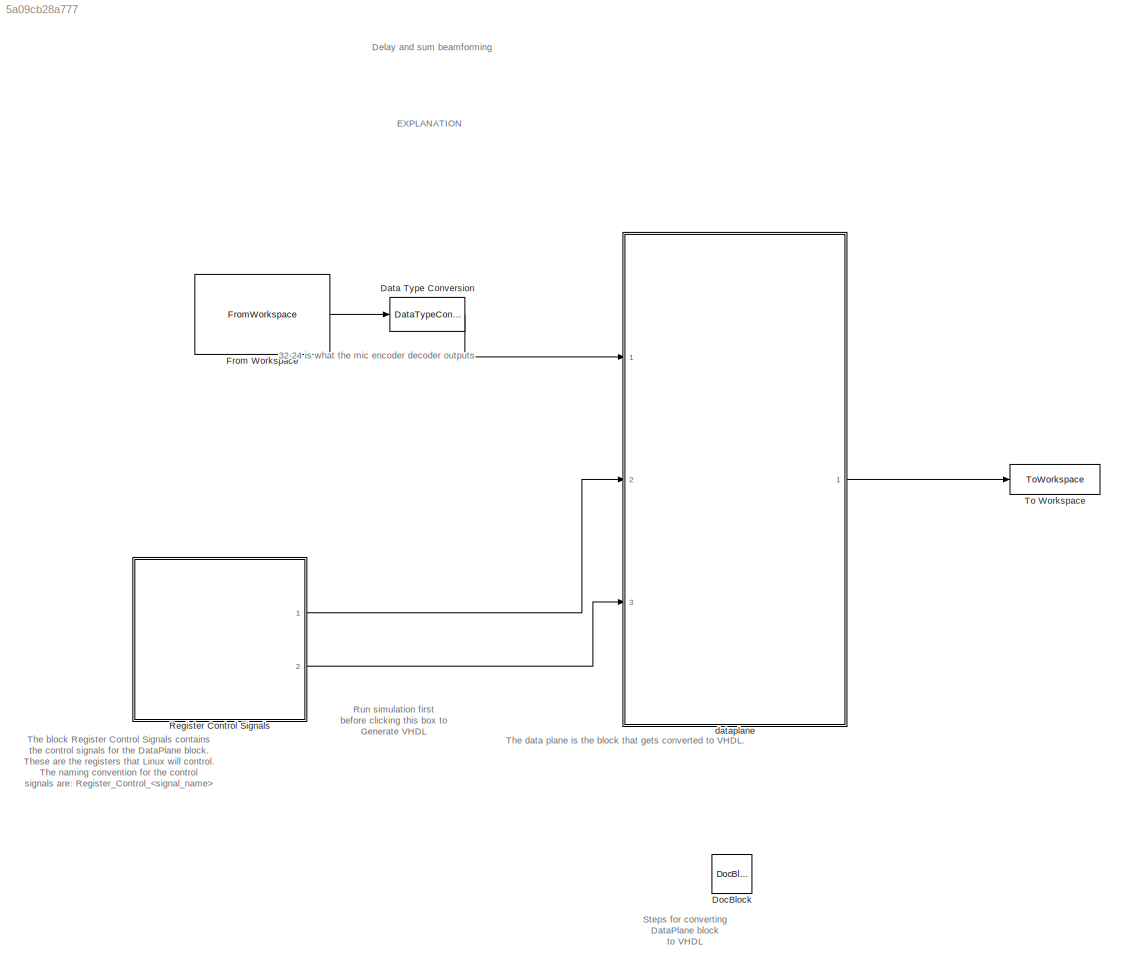
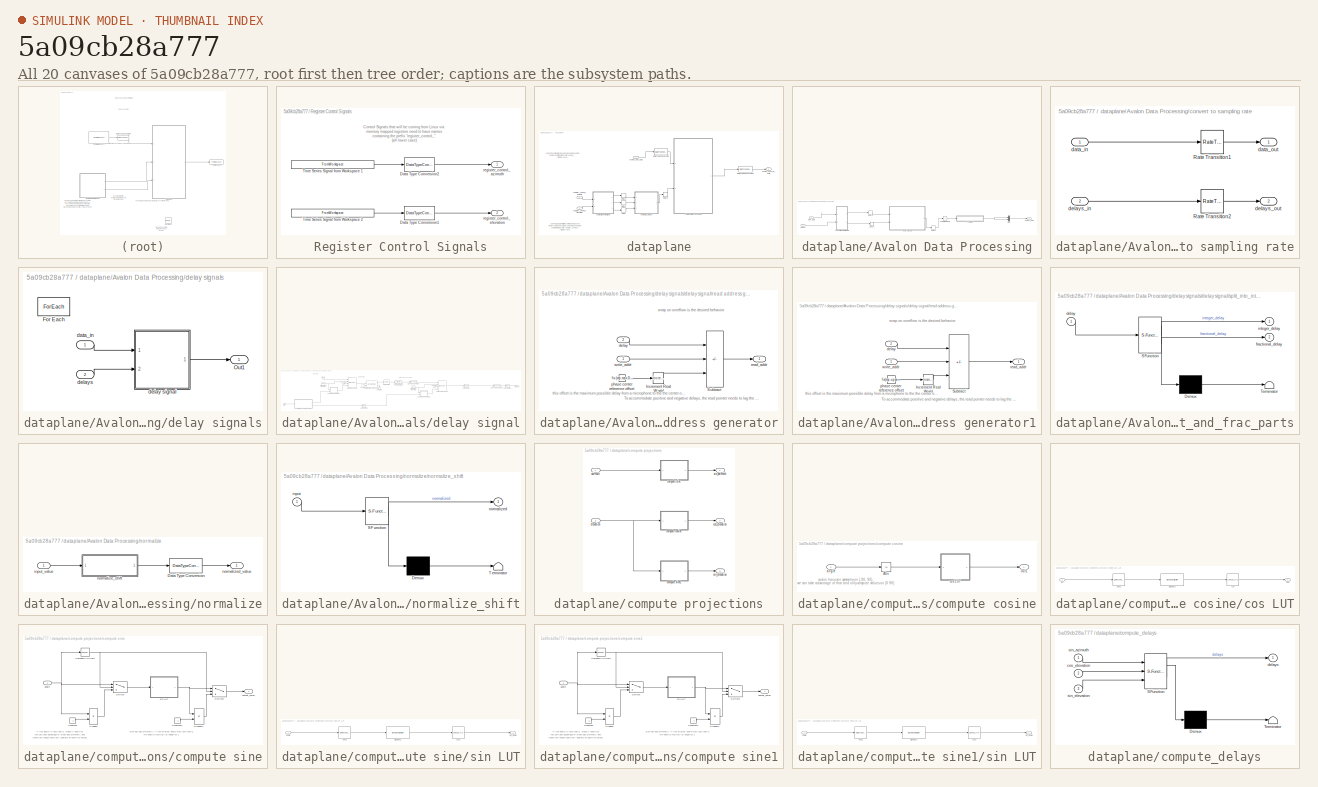
[diagram: thumbnail index - all 20 canvases of the model, root first then tree order]
MODEL slx_5a09cb28a777
KIND model
CONFIG AbsTol = auto
CONFIG EnableMultiTasking = off
CONFIG FixedStep = auto
CONFIG InitFcn = initCallback
CONFIG MaxStep = auto
CONFIG MinStep = auto
CONFIG RelTol = 1e-3
CONFIG SampleTimeConstraint = Unconstrained
CONFIG SolverName = FixedStepDiscrete
CONFIG StartTime = 0.0
CONFIG StopFcn = stopCallback
CONFIG StopTime = stopTime
BLOCK [DataTypeConversion] Data Type Conversion
  OutDataTypeStr = fixdt(1,32,24)
  RndMeth = Floor
  SaturateOnIntegerOverflow = off
BLOCK [Reference] DocBlock  REF=simulink/Model-Wide
Utilities/DocBlock
  Ports = []
  SourceBlock = simulink/Model-Wide\nUtilities/DocBlock
  SourceProductBaseCode = SL
  SourceType = DocBlock
  UserDataPersistent = on
BLOCK [FromWorkspace] From Workspace
  Interpolate = off
  OutDataTypeStr = double
  OutputAfterFinalValue = Setting to zero
  SampleTime = mp.Ts_sim
  VariableName = testSignal.asTimeSeries
BLOCK [SubSystem] Register Control Signals
  Ports = [0, 2]
  RequestExecContextInheritance = off
BLOCK [DataTypeConversion] Register Control Signals/Data Type Conversion1
  OutDataTypeStr = mp.register{2}.dataType
  RndMeth = Floor
  SaturateOnIntegerOverflow = off
BLOCK [DataTypeConversion] Register Control Signals/Data Type Conversion2
  OutDataTypeStr = mp.register{1}.dataType
  RndMeth = Floor
  SaturateOnIntegerOverflow = off
BLOCK [FromWorkspace] Register Control Signals/Time Series Signal from Workspace 1
  OutDataTypeStr = double
  SampleTime = mp.Ts_sim
  VariableName = mp.register{1}.timeseries
BLOCK [FromWorkspace] Register Control Signals/Time Series Signal from Workspace 2
  OutDataTypeStr = double
  SampleTime = mp.Ts_sim
  VariableName = mp.register{2}.timeseries
BLOCK [Outport] Register Control Signals/register_control_azimuth
  VectorParamsAs1DForOutWhenUnconnected = off
BLOCK [Outport] Register Control Signals/register_control_elevation
  Port = 2
  VectorParamsAs1DForOutWhenUnconnected = off
BLOCK [ToWorkspace] To Workspace
  FixptAsFi = on
  MaxDataPoints = inf
  Ports = [1]
  SampleTime = -1
  Save2DSignal = 2-D array (concatenate along first dimension)
  SaveFormat = Timeseries
  VariableName = dataOut
BLOCK [SubSystem] dataplane
  Ports = [3, 1]
  RequestExecContextInheritance = off
  TreatAsAtomicUnit = on
BLOCK [SubSystem] dataplane/Avalon Data Processing
  Ports = [2, 1]
  RequestExecContextInheritance = off
  TreatAsAtomicUnit = on
BLOCK [Delay] dataplane/Avalon Data Processing/Delay2
  DelayLength = 1
  InputPortMap = u0
  Ports = [1, 1]
BLOCK [Delay] dataplane/Avalon Data Processing/Delay3
  DelayLength = 1
  InputPortMap = u0
  Ports = [1, 1]
BLOCK [Delay] dataplane/Avalon Data Processing/Delay4
  DelayLength = 1
  InputPortMap = u0
  Ports = [1, 1]
BLOCK [Mux] dataplane/Avalon Data Processing/Mux
  DisplayOption = bar
  Inputs = 2
  Ports = [2, 1]
BLOCK [Inport] dataplane/Avalon Data Processing/Sink_Data
BLOCK [Outport] dataplane/Avalon Data Processing/Source_Data
  InitialOutput = 0
  VectorParamsAs1DForOutWhenUnconnected = off
BLOCK [Sum] dataplane/Avalon Data Processing/Sum of Elements
  CollapseMode = Specified dimension
  IconShape = rectangular
  Inputs = +
  Ports = [1, 1]
BLOCK [SubSystem] dataplane/Avalon Data Processing/convert to sampling rate
  Ports = [2, 2]
  RequestExecContextInheritance = off
BLOCK [RateTransition] dataplane/Avalon Data Processing/convert to sampling rate/Rate Transition1
  OutPortSampleTime = mp.Ts
BLOCK [RateTransition] dataplane/Avalon Data Processing/convert to sampling rate/Rate Transition2
  OutPortSampleTime = mp.Ts
BLOCK [Inport] dataplane/Avalon Data Processing/convert to sampling rate/data_in
BLOCK [Outport] dataplane/Avalon Data Processing/convert to sampling rate/data_out
BLOCK [Inport] dataplane/Avalon Data Processing/convert to sampling rate/delays_in
  Port = 2
BLOCK [Outport] dataplane/Avalon Data Processing/convert to sampling rate/delays_out
  Port = 2
BLOCK [SubSystem] dataplane/Avalon Data Processing/delay signals
  Ports = [2, 1]
  RequestExecContextInheritance = off
  TreatAsAtomicUnit = on
BLOCK [ForEach] dataplane/Avalon Data Processing/delay signals/For Each
  DisableCoverage = on
  Ports = []
BLOCK [Outport] dataplane/Avalon Data Processing/delay signals/Out1
  ConcatenationDimension = 1
  VectorParamsAs1DForOutWhenUnconnected = off
BLOCK [Inport] dataplane/Avalon Data Processing/delay signals/data_in
  Partition = on
  PartitionDimension = 1
  PartitionOffset = 0
  PartitionWidth = 1
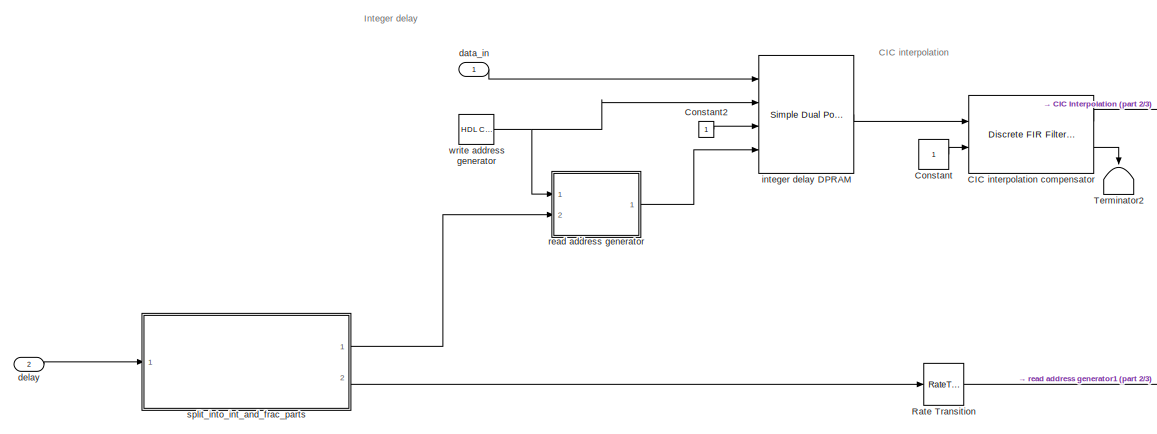
[diagram: dataplane/Avalon Data Processing/delay signals/delay signal - part 1/3, left side, full height]
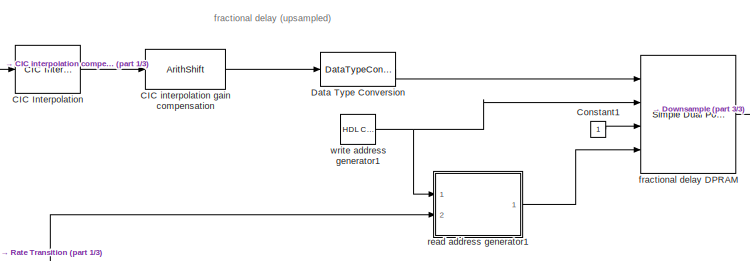
[diagram: dataplane/Avalon Data Processing/delay signals/delay signal - part 2/3, central region]
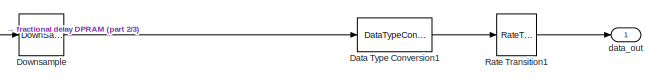
[diagram: dataplane/Avalon Data Processing/delay signals/delay signal - part 3/3, middle right region]
BLOCK [SubSystem] dataplane/Avalon Data Processing/delay signals/delay signal
  Ports = [2, 1]
  RequestExecContextInheritance = off
BLOCK [Reference] dataplane/Avalon Data Processing/delay signals/delay signal/CIC Interpolation  REF=dspmlti4/CIC
Interpolation
  Ports = [1, 1]
  SourceBlock = dspmlti4/CIC\nInterpolation
  SourceProductBaseCode = DS
  SourceType = CIC Interpolation
  UserDataPersistent = on
BLOCK [Reference] dataplane/Avalon Data Processing/delay signals/delay signal/CIC interpolation compensator  REF=dsphdlfiltering/Discrete FIR Filter
HDL Optimized
  Ports = [2, 2]
  SourceBlock = dsphdlfiltering/Discrete FIR Filter\nHDL Optimized
  SourceProductBaseCode = DS
  SourceType = Discrete FIR Filter HDL Optimized
BLOCK [ArithShift] dataplane/Avalon Data Processing/delay signals/delay signal/CIC interpolation gain compensation
  BitShiftDirection = Right
  BitShiftNumber = log2(mp.cicInterpolator.gain)
  DiagnosticForOORShift = Error
  InputPortMap = u0
  Ports = [1, 1]
BLOCK [Constant] dataplane/Avalon Data Processing/delay signals/delay signal/Constant
  OutDataTypeStr = boolean
  SampleTime = -1
BLOCK [Constant] dataplane/Avalon Data Processing/delay signals/delay signal/Constant1
  OutDataTypeStr = Inherit: Inherit via back propagation
  SampleTime = -1
BLOCK [Constant] dataplane/Avalon Data Processing/delay signals/delay signal/Constant2
  OutDataTypeStr = Inherit: Inherit via back propagation
  SampleTime = -1
BLOCK [DataTypeConversion] dataplane/Avalon Data Processing/delay signals/delay signal/Data Type Conversion
  OutDataTypeStr = fixdt(1, mp.W_bits, mp.F_bits)
  RndMeth = Floor
  SaturateOnIntegerOverflow = off
BLOCK [DataTypeConversion] dataplane/Avalon Data Processing/delay signals/delay signal/Data Type Conversion1
  OutDataTypeStr = fixdt(1, mp.W_bits, mp.F_bits)
  RndMeth = Floor
  SaturateOnIntegerOverflow = off
BLOCK [DownSample] dataplane/Avalon Data Processing/delay signals/delay signal/Downsample
  InputProcessing = Elements as channels (sample based)
  N = mp.upsampleFactor
  RateOptions = Allow multirate processing
BLOCK [RateTransition] dataplane/Avalon Data Processing/delay signals/delay signal/Rate Transition
  OutPortSampleTime = mp.Ts/mp.upsampleFactor
BLOCK [RateTransition] dataplane/Avalon Data Processing/delay signals/delay signal/Rate Transition1
  OutPortSampleTime = mp.Ts_sim
BLOCK [Terminator] dataplane/Avalon Data Processing/delay signals/delay signal/Terminator2
  NameLocation = left
BLOCK [Inport] dataplane/Avalon Data Processing/delay signals/delay signal/data_in
BLOCK [Outport] dataplane/Avalon Data Processing/delay signals/delay signal/data_out
  VectorParamsAs1DForOutWhenUnconnected = off
BLOCK [Inport] dataplane/Avalon Data Processing/delay signals/delay signal/delay
  Port = 2
BLOCK [Reference] dataplane/Avalon Data Processing/delay signals/delay signal/fractional delay DPRAM  REF=hdlsllib/HDL RAMs/Simple Dual Port RAM
  Ports = [4, 1]
  SourceBlock = hdlsllib/HDL RAMs/Simple Dual Port RAM
  SourceProductBaseCode = SL
  SourceType = Simple Dual-port RAM
BLOCK [Reference] dataplane/Avalon Data Processing/delay signals/delay signal/integer delay DPRAM  REF=hdlsllib/HDL RAMs/Simple Dual Port RAM
  Ports = [4, 1]
  SourceBlock = hdlsllib/HDL RAMs/Simple Dual Port RAM
  SourceProductBaseCode = SL
  SourceType = Simple Dual-port RAM
BLOCK [SubSystem] dataplane/Avalon Data Processing/delay signals/delay signal/read address generator
  Ports = [2, 1]
  RequestExecContextInheritance = off
BLOCK [Reference] dataplane/Avalon Data Processing/delay signals/delay signal/read address generator/Increment Real World  REF=simulink/Additional Math
& Discrete/Additional Math:
Increment - Decrement/Increment
Real World
  Ports = [1, 1]
  SourceBlock = simulink/Additional Math\n& Discrete/Additional Math:\nIncrement - Decrement/Increment\nReal World
  SourceProductBaseCode = SL
  SourceType = Real World Value Increment
BLOCK [Sum] dataplane/Avalon Data Processing/delay signals/delay signal/read address generator/Subtract
  IconShape = rectangular
  Inputs = ++-
  OutDataTypeStr = Inherit: Inherit via back propagation
  Ports = [3, 1]
BLOCK [Inport] dataplane/Avalon Data Processing/delay signals/delay signal/read address generator/delay
  Port = 2
BLOCK [Constant] dataplane/Avalon Data Processing/delay signals/delay signal/read address generator/phase center reference offset
  OutDataTypeStr = fixdt(0,delayDataTypeWordLength - delayDataTypeFractionLength,0)
  SampleTime = -1
  Value = fix(mp.maxDelay/2)
BLOCK [Outport] dataplane/Avalon Data Processing/delay signals/delay signal/read address generator/read_addr
  VectorParamsAs1DForOutWhenUnconnected = off
BLOCK [Inport] dataplane/Avalon Data Processing/delay signals/delay signal/read address generator/write_addr
BLOCK [SubSystem] dataplane/Avalon Data Processing/delay signals/delay signal/read address generator1
  Ports = [2, 1]
  RequestExecContextInheritance = off
BLOCK [Reference] dataplane/Avalon Data Processing/delay signals/delay signal/read address generator1/Increment Real World  REF=simulink/Additional Math
& Discrete/Additional Math:
Increment - Decrement/Increment
Real World
  Ports = [1, 1]
  SourceBlock = simulink/Additional Math\n& Discrete/Additional Math:\nIncrement - Decrement/Increment\nReal World
  SourceProductBaseCode = SL
  SourceType = Real World Value Increment
BLOCK [Sum] dataplane/Avalon Data Processing/delay signals/delay signal/read address generator1/Subtract
  IconShape = rectangular
  Inputs = ++-
  OutDataTypeStr = Inherit: Inherit via back propagation
  Ports = [3, 1]
BLOCK [Inport] dataplane/Avalon Data Processing/delay signals/delay signal/read address generator1/delay
  Port = 2
BLOCK [Constant] dataplane/Avalon Data Processing/delay signals/delay signal/read address generator1/phase center reference offset
  OutDataTypeStr = fixdt(0, delayDataTypeFractionLength, 0)
  SampleTime = -1
  Value = fix(mp.upsampleFactor)
BLOCK [Outport] dataplane/Avalon Data Processing/delay signals/delay signal/read address generator1/read_addr
  VectorParamsAs1DForOutWhenUnconnected = off
BLOCK [Inport] dataplane/Avalon Data Processing/delay signals/delay signal/read address generator1/write_addr
BLOCK [SubSystem] dataplane/Avalon Data Processing/delay signals/delay signal/split_into_int_and_frac_parts
  ErrorFcn = Stateflow.Translate.translate
  PermitHierarchicalResolution = ExplicitOnly
  Ports = [1, 2]
  RequestExecContextInheritance = off
  SFBlockType = MATLAB Function
  TreatAsAtomicUnit = on
BLOCK [Demux] dataplane/Avalon Data Processing/delay signals/delay signal/split_into_int_and_frac_parts/ Demux 
  Outputs = 1
  Ports = [1, 1]
BLOCK [S-Function] dataplane/Avalon Data Processing/delay signals/delay signal/split_into_int_and_frac_parts/ SFunction 
  EnableBusSupport = on
  FunctionName = sf_sfun
  Parameters = delayDataTypeFractionLength,upsampleFactor
  PortCounts = [1 3]
  Ports = [1, 3]
  SFcnIsStateOwnerBlock = off
  SFunctionDeploymentMode = off
  Tag = Stateflow S-Function 3
BLOCK [Terminator] dataplane/Avalon Data Processing/delay signals/delay signal/split_into_int_and_frac_parts/ Terminator 
BLOCK [Inport] dataplane/Avalon Data Processing/delay signals/delay signal/split_into_int_and_frac_parts/delay
BLOCK [Outport] dataplane/Avalon Data Processing/delay signals/delay signal/split_into_int_and_frac_parts/fractional_delay
  Port = 2
BLOCK [Outport] dataplane/Avalon Data Processing/delay signals/delay signal/split_into_int_and_frac_parts/integer_delay
  VectorParamsAs1DForOutWhenUnconnected = off
BLOCK [Reference] dataplane/Avalon Data Processing/delay signals/delay signal/write address generator  REF=hdlsllib/Sources/HDL Counter
  Ports = [0, 1]
  SourceBlock = hdlsllib/Sources/HDL Counter
  SourceProductBaseCode = SL
  SourceType = HDL Counter
BLOCK [Reference] dataplane/Avalon Data Processing/delay signals/delay signal/write address generator1  REF=hdlsllib/Sources/HDL Counter
  Ports = [0, 1]
  SourceBlock = hdlsllib/Sources/HDL Counter
  SourceProductBaseCode = SL
  SourceType = HDL Counter
BLOCK [Inport] dataplane/Avalon Data Processing/delay signals/delays
  Partition = on
  PartitionDimension = 1
  PartitionOffset = 0
  PartitionWidth = 1
  Port = 2
BLOCK [Inport] dataplane/Avalon Data Processing/delays
  Port = 2
BLOCK [SubSystem] dataplane/Avalon Data Processing/normalize
  Ports = [1, 1]
  RequestExecContextInheritance = off
BLOCK [DataTypeConversion] dataplane/Avalon Data Processing/normalize/Data Type Conversion
  OutDataTypeStr = fixdt(1, mp.W_bits, mp.F_bits)
  RndMeth = Floor
  SaturateOnIntegerOverflow = off
BLOCK [Inport] dataplane/Avalon Data Processing/normalize/input_value
BLOCK [SubSystem] dataplane/Avalon Data Processing/normalize/normalize_shift
  ErrorFcn = Stateflow.Translate.translate
  PermitHierarchicalResolution = ExplicitOnly
  Ports = [1, 1]
  RequestExecContextInheritance = off
  SFBlockType = MATLAB Function
  TreatAsAtomicUnit = on
BLOCK [Demux] dataplane/Avalon Data Processing/normalize/normalize_shift/ Demux 
  Outputs = 1
  Ports = [1, 1]
BLOCK [S-Function] dataplane/Avalon Data Processing/normalize/normalize_shift/ SFunction 
  EnableBusSupport = on
  FunctionName = sf_sfun
  PortCounts = [1 2]
  Ports = [1, 2]
  SFcnIsStateOwnerBlock = off
  SFunctionDeploymentMode = off
  Tag = Stateflow S-Function 4
BLOCK [Terminator] dataplane/Avalon Data Processing/normalize/normalize_shift/ Terminator 
BLOCK [Inport] dataplane/Avalon Data Processing/normalize/normalize_shift/input
BLOCK [Outport] dataplane/Avalon Data Processing/normalize/normalize_shift/normalized
  VectorParamsAs1DForOutWhenUnconnected = off
BLOCK [Outport] dataplane/Avalon Data Processing/normalize/normalized_value
BLOCK [DataTypeConversion] dataplane/Data Type Conversion
  OutDataTypeStr = fixdt(1,24,23)
  RndMeth = Floor
  SaturateOnIntegerOverflow = off
BLOCK [DataTypeConversion] dataplane/Data Type Conversion1
  OutDataTypeStr = fixdt(1,mp.W_bits, mp.F_bits)
  RndMeth = Floor
  SaturateOnIntegerOverflow = off
BLOCK [Delay] dataplane/Delay
  DelayLength = 1
  InputPortMap = u0
  Ports = [1, 1]
BLOCK [Delay] dataplane/Delay1
  DelayLength = 1
  InputPortMap = u0
  Ports = [1, 1]
BLOCK [Delay] dataplane/Delay2
  DelayLength = 1
  InputPortMap = u0
  Ports = [1, 1]
BLOCK [Delay] dataplane/Delay3
  DelayLength = 1
  InputPortMap = u0
  Ports = [1, 1]
BLOCK [Inport] dataplane/avalon_sink_data
BLOCK [Outport] dataplane/avalon_source_data
  VectorParamsAs1DForOutWhenUnconnected = off
BLOCK [SubSystem] dataplane/compute projections
  Ports = [2, 3]
  RequestExecContextInheritance = off
BLOCK [Inport] dataplane/compute projections/azimuth
BLOCK [SubSystem] dataplane/compute projections/compute cosine
  Ports = [1, 1]
  RequestExecContextInheritance = off
BLOCK [Abs] dataplane/compute projections/compute cosine/Abs
  SaturateOnIntegerOverflow = off
BLOCK [Outport] dataplane/compute projections/compute cosine/Out1
BLOCK [Inport] dataplane/compute projections/compute cosine/angle
BLOCK [SubSystem] dataplane/compute projections/compute cosine/cos LUT
  Description = This block was created using function approximation.
  Ports = [1, 1]
  RequestExecContextInheritance = off
BLOCK [DataTypeConversion] dataplane/compute projections/compute cosine/cos LUT/DTC1
  RndMeth = Nearest
  SaturateOnIntegerOverflow = off
BLOCK [Inport] dataplane/compute projections/compute cosine/cos LUT/In1
BLOCK [Lookup_n-D] dataplane/compute projections/compute cosine/cos LUT/LUT
  BeginIndexSearchUsingPreviousIndexResult = on
  BreakpointsForDimension1FirstPoint = 0
  BreakpointsForDimension1Spacing = 2
  BreakpointsForDimension3 = [5, 7]
  BreakpointsSpecification = Even spacing
  DiagnosticForOutOfRangeInput = Error
  ExtrapMethod = Clip
  IndexSearchMethod = Evenly spaced points
  InputPortMap = u0
  InputSameDT = off
  InternalRulePriority = Speed
  LookupTableObject = FunctionApproximation_LUTObject_20200313T090826873
  NumberOfTableDimensions = 1
  OutDataTypeStr = numerictype(1,16,14)
  Ports = [1, 1]
  RndMeth = Simplest
  Table = [1 0.9993896484375 0.99755859375 0.9945068359375 0.99029541015625 0.98480224609375 0.9781494140625 0.97027587890625 0.96124267578125 0.9510498046875 0.939697265625 0.92718505859375 0.91357421875 0.8988037109375 0.8829345703125 0.86602783203125 0.8480224609375 0.82904052734375 0.80902099609375 0.78802490234375 0.76605224609375 0.7431640625 0.7193603515625 0.69464111328125 0.66912841796875 0.6427612...<+298ch>
  TableDataTypeStr = numerictype(1,16,14)
  UseLastTableValue = on
BLOCK [Outport] dataplane/compute projections/compute cosine/cos LUT/Out1
BLOCK [SignalSpecification] dataplane/compute projections/compute cosine/cos LUT/SigSpec1
  OutDataTypeStr = numerictype(1,16,8)
  OutMax = 90
  OutMin = 0
BLOCK [SubSystem] dataplane/compute projections/compute sine
  Ports = [1, 1]
  RequestExecContextInheritance = off
BLOCK [Reference] dataplane/compute projections/compute sine/Compare To Zero  REF=simulink/Logic and Bit
Operations/Compare
To Zero
  Ports = [1, 1]
  SourceBlock = simulink/Logic and Bit\nOperations/Compare\nTo Zero
  SourceProductBaseCode = SL
  SourceType = Compare To Zero
BLOCK [Constant] dataplane/compute projections/compute sine/Constant
  OutDataTypeStr = Inherit: Inherit via back propagation
  SampleTime = -1
  Value = -1
BLOCK [Constant] dataplane/compute projections/compute sine/Constant1
  OutDataTypeStr = Inherit: Inherit via back propagation
  SampleTime = -1
  Value = -1
BLOCK [Product] dataplane/compute projections/compute sine/Product
  OutDataTypeStr = Inherit: Same as first input
  Ports = [2, 1]
BLOCK [Product] dataplane/compute projections/compute sine/Product1
  OutDataTypeStr = Inherit: Same as first input
  Ports = [2, 1]
BLOCK [Switch] dataplane/compute projections/compute sine/Switch
  Criteria = u2 ~= 0
  InputSameDT = off
  SaturateOnIntegerOverflow = off
  Threshold = 1
BLOCK [Switch] dataplane/compute projections/compute sine/Switch1
  Criteria = u2 ~= 0
  InputSameDT = off
  SaturateOnIntegerOverflow = off
  Threshold = 1
BLOCK [Inport] dataplane/compute projections/compute sine/angle
BLOCK [Outport] dataplane/compute projections/compute sine/output_value
BLOCK [SubSystem] dataplane/compute projections/compute sine/sin LUT
  Description = This block was created using function approximation.
  Ports = [1, 1]
  RequestExecContextInheritance = off
BLOCK [DataTypeConversion] dataplane/compute projections/compute sine/sin LUT/DTC2
  RndMeth = Nearest
  SaturateOnIntegerOverflow = off
BLOCK [Lookup_n-D] dataplane/compute projections/compute sine/sin LUT/LUT1
  BeginIndexSearchUsingPreviousIndexResult = on
  BreakpointsForDimension1FirstPoint = 0
  BreakpointsForDimension1Spacing = 4
  BreakpointsForDimension3 = [5, 7]
  BreakpointsSpecification = Even spacing
  DiagnosticForOutOfRangeInput = Error
  ExtrapMethod = Clip
  IndexSearchMethod = Evenly spaced points
  InputPortMap = u0
  InputSameDT = off
  InternalRulePriority = Speed
  LookupTableObject = FunctionApproximation_LUTObject_20200313T084211896
  NumberOfTableDimensions = 1
  OutDataTypeStr = numerictype(1,16,14)
  Ports = [1, 1]
  RndMeth = Simplest
  Table = [0 0.06976318359375 0.13916015625 0.2078857421875 0.275634765625 0.342041015625 0.40673828125 0.469482421875 0.5299072265625 0.5877685546875 0.64276123046875 0.69464111328125 0.7431640625 0.78802490234375 0.82904052734375 0.86602783203125 0.8988037109375 0.92718505859375 0.9510498046875 0.97027587890625 0.98480224609375 0.9945068359375 0.9993896484375]
  TableDataTypeStr = numerictype(1,16,14)
  UseLastTableValue = on
BLOCK [SignalSpecification] dataplane/compute projections/compute sine/sin LUT/SigSpec2
  OutDataTypeStr = numerictype(1,16,8)
  OutMax = 90
  OutMin = 0
BLOCK [Inport] dataplane/compute projections/compute sine/sin LUT/angle
BLOCK [Outport] dataplane/compute projections/compute sine/sin LUT/sin_angle
BLOCK [SubSystem] dataplane/compute projections/compute sine1
  Ports = [1, 1]
  RequestExecContextInheritance = off
BLOCK [Reference] dataplane/compute projections/compute sine1/Compare To Zero  REF=simulink/Logic and Bit
Operations/Compare
To Zero
  Ports = [1, 1]
  SourceBlock = simulink/Logic and Bit\nOperations/Compare\nTo Zero
  SourceProductBaseCode = SL
  SourceType = Compare To Zero
BLOCK [Constant] dataplane/compute projections/compute sine1/Constant
  OutDataTypeStr = Inherit: Inherit via back propagation
  SampleTime = -1
  Value = -1
BLOCK [Constant] dataplane/compute projections/compute sine1/Constant1
  OutDataTypeStr = Inherit: Inherit via back propagation
  SampleTime = -1
  Value = -1
BLOCK [Product] dataplane/compute projections/compute sine1/Product
  OutDataTypeStr = Inherit: Same as first input
  Ports = [2, 1]
BLOCK [Product] dataplane/compute projections/compute sine1/Product1
  OutDataTypeStr = Inherit: Same as first input
  Ports = [2, 1]
BLOCK [Switch] dataplane/compute projections/compute sine1/Switch
  Criteria = u2 ~= 0
  InputSameDT = off
  SaturateOnIntegerOverflow = off
  Threshold = 1
BLOCK [Switch] dataplane/compute projections/compute sine1/Switch1
  Criteria = u2 ~= 0
  InputSameDT = off
  SaturateOnIntegerOverflow = off
  Threshold = 1
BLOCK [Inport] dataplane/compute projections/compute sine1/angle
BLOCK [Outport] dataplane/compute projections/compute sine1/output_value
BLOCK [SubSystem] dataplane/compute projections/compute sine1/sin LUT
  Description = This block was created using function approximation.
  Ports = [1, 1]
  RequestExecContextInheritance = off
BLOCK [DataTypeConversion] dataplane/compute projections/compute sine1/sin LUT/DTC2
  RndMeth = Nearest
  SaturateOnIntegerOverflow = off
BLOCK [Lookup_n-D] dataplane/compute projections/compute sine1/sin LUT/LUT1
  BeginIndexSearchUsingPreviousIndexResult = on
  BreakpointsForDimension1FirstPoint = 0
  BreakpointsForDimension1Spacing = 4
  BreakpointsForDimension3 = [5, 7]
  BreakpointsSpecification = Even spacing
  DiagnosticForOutOfRangeInput = Error
  ExtrapMethod = Clip
  IndexSearchMethod = Evenly spaced points
  InputPortMap = u0
  InputSameDT = off
  InternalRulePriority = Speed
  LookupTableObject = FunctionApproximation_LUTObject_20200313T084211896
  NumberOfTableDimensions = 1
  OutDataTypeStr = numerictype(1,16,14)
  Ports = [1, 1]
  RndMeth = Simplest
  Table = [0 0.06976318359375 0.13916015625 0.2078857421875 0.275634765625 0.342041015625 0.40673828125 0.469482421875 0.5299072265625 0.5877685546875 0.64276123046875 0.69464111328125 0.7431640625 0.78802490234375 0.82904052734375 0.86602783203125 0.8988037109375 0.92718505859375 0.9510498046875 0.97027587890625 0.98480224609375 0.9945068359375 0.9993896484375]
  TableDataTypeStr = numerictype(1,16,14)
  UseLastTableValue = on
BLOCK [SignalSpecification] dataplane/compute projections/compute sine1/sin LUT/SigSpec2
  OutDataTypeStr = numerictype(1,16,8)
  OutMax = 90
  OutMin = 0
BLOCK [Inport] dataplane/compute projections/compute sine1/sin LUT/angle
BLOCK [Outport] dataplane/compute projections/compute sine1/sin LUT/sin_angle
BLOCK [Outport] dataplane/compute projections/cos_elevation
  Port = 2
BLOCK [Inport] dataplane/compute projections/elevation
  Port = 2
BLOCK [Outport] dataplane/compute projections/sin_azimuth
BLOCK [Outport] dataplane/compute projections/sin_elevation
  Port = 3
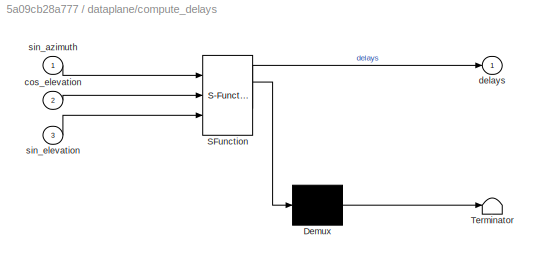
BLOCK [SubSystem] dataplane/compute_delays
  ErrorFcn = Stateflow.Translate.translate
  PermitHierarchicalResolution = ExplicitOnly
  Ports = [3, 1]
  RequestExecContextInheritance = off
  SFBlockType = MATLAB Function
  TreatAsAtomicUnit = on
BLOCK [Demux] dataplane/compute_delays/ Demux 
  Outputs = 1
  Ports = [1, 1]
BLOCK [S-Function] dataplane/compute_delays/ SFunction 
  EnableBusSupport = on
  FunctionName = sf_sfun
  Parameters = arraySize,arraySpacing,delayDataTypeFractionLength,delayDataTypeSign,delayDataTypeWordLength,samplingRate,speedOfSound
  PortCounts = [3 2]
  Ports = [3, 2]
  SFcnIsStateOwnerBlock = off
  SFunctionDeploymentMode = off
  Tag = Stateflow S-Function 2
BLOCK [Terminator] dataplane/compute_delays/ Terminator 
BLOCK [Inport] dataplane/compute_delays/cos_elevation
  Port = 2
BLOCK [Outport] dataplane/compute_delays/delays
  VectorParamsAs1DForOutWhenUnconnected = off
BLOCK [Inport] dataplane/compute_delays/sin_azimuth
BLOCK [Inport] dataplane/compute_delays/sin_elevation
  Port = 3
BLOCK [Inport] dataplane/register_control_azimuth
  Port = 2
BLOCK [Inport] dataplane/register_control_elevation
  Port = 3
ANNOTATION (root): 32-24 is what the mic encoder decoder outputs
ANNOTATION (root): Steps for converting DataPlane block to VHDL
ANNOTATION (root): Run simulation first before clicking this box to Generate VHDL
ANNOTATION (root): Delay and sum beamforming
ANNOTATION (root): EXPLANATION
ANNOTATION (root): The block Register Control Signals contains the control signals for the DataPlane block. These are the registers that Linux will control. The naming convention for the control signals are: Register_Control_
ANNOTATION (root): The data plane is the block that gets converted to VHDL.
ANNOTATION Register Control Signals: Control Signals that will be coming from Linux via memory mapped registers need to have names containing the prefix "register_control_" (all lower case)
ANNOTATION dataplane: Avalon streaming interface signals need to have the names containing the prefix "avalon_" (all lower case)
ANNOTATION dataplane: Control Signals that will be coming from Linux via memory mapped registers need to have names containing the prefix "register_control_" (all lower case)
ANNOTATION dataplane/Avalon Data Processing/delay signals/delay signal: CIC interpolation
ANNOTATION dataplane/Avalon Data Processing/delay signals/delay signal: Integer delay
ANNOTATION dataplane/Avalon Data Processing/delay signals/delay signal: fractional delay (upsampled)
ANNOTATION dataplane/Avalon Data Processing/delay signals/delay signal/read address generator: To accommodate positive and negative delays, the read pointer needs to lag the write pointer by the maximum delay + 1. For the maximum positive delay, this puts the read pointer 1 behind the write pointer.
ANNOTATION dataplane/Avalon Data Processing/delay signals/delay signal/read address generator: this offset is the maximum possible delay from a microphone to the the center of the array
ANNOTATION dataplane/Avalon Data Processing/delay signals/delay signal/read address generator: wrap on overflow is the desired behavior
ANNOTATION dataplane/Avalon Data Processing/delay signals/delay signal/read address generator1: To accommodate positive and negative delays, the read pointer needs to lag the write pointer by the maximum delay + 1. For the maximum positive delay, this puts the read pointer 1 behind the write pointer.
ANNOTATION dataplane/Avalon Data Processing/delay signals/delay signal/read address generator1: this offset is the maximum possible delay from a microphone to the the center of the array
ANNOTATION dataplane/Avalon Data Processing/delay signals/delay signal/read address generator1: wrap on overflow is the desired behavior
ANNOTATION dataplane/compute projections/compute cosine: cosine has even symmetry on [-90, 90]. we can take advantage of that and only compute values on [0 90]
ANNOTATION dataplane/compute projections/compute sine: if the angle is less than 0, make it positive. We can take advantage of sine's odd symmetry and make the lookup table only operate on positive values
ANNOTATION dataplane/compute projections/compute sine: sine has odd symmetry; if the original angle was less than 0, we need to multiply by negative 1
ANNOTATION dataplane/compute projections/compute sine1: if the angle is less than 0, make it positive. We can take advantage of sine's odd symmetry and make the lookup table only operate on positive values
ANNOTATION dataplane/compute projections/compute sine1: sine has odd symmetry; if the original angle was less than 0, we need to multiply by negative 1
LINE Data Type Conversion:1 -> dataplane:1
LINE From Workspace:1 -> Data Type Conversion:1
LINE Register Control Signals/Data Type Conversion1:1 -> Register Control Signals/register_control_elevation:1
LINE Register Control Signals/Data Type Conversion2:1 -> Register Control Signals/register_control_azimuth:1
LINE Register Control Signals/Time Series Signal from Workspace 1:1 -> Register Control Signals/Data Type Conversion2:1
LINE Register Control Signals/Time Series Signal from Workspace 2:1 -> Register Control Signals/Data Type Conversion1:1
LINE Register Control Signals:1 -> dataplane:2
LINE Register Control Signals:2 -> dataplane:3
LINE dataplane/Avalon Data Processing/Delay2:1 -> dataplane/Avalon Data Processing/delay signals:2
LINE dataplane/Avalon Data Processing/Delay3:1 -> dataplane/Avalon Data Processing/delay signals:1
LINE dataplane/Avalon Data Processing/Delay4:1 -> dataplane/Avalon Data Processing/Sum of Elements:1
LINE dataplane/Avalon Data Processing/Mux:1 -> dataplane/Avalon Data Processing/Source_Data:1
LINE dataplane/Avalon Data Processing/Sink_Data:1 -> dataplane/Avalon Data Processing/convert to sampling rate:1
LINE dataplane/Avalon Data Processing/Sum of Elements:1 -> dataplane/Avalon Data Processing/normalize:1
LINE dataplane/Avalon Data Processing/convert to sampling rate/Rate Transition1:1 -> dataplane/Avalon Data Processing/convert to sampling rate/data_out:1
LINE dataplane/Avalon Data Processing/convert to sampling rate/Rate Transition2:1 -> dataplane/Avalon Data Processing/convert to sampling rate/delays_out:1
LINE dataplane/Avalon Data Processing/convert to sampling rate/data_in:1 -> dataplane/Avalon Data Processing/convert to sampling rate/Rate Transition1:1
LINE dataplane/Avalon Data Processing/convert to sampling rate/delays_in:1 -> dataplane/Avalon Data Processing/convert to sampling rate/Rate Transition2:1
LINE dataplane/Avalon Data Processing/convert to sampling rate:1 -> dataplane/Avalon Data Processing/Delay3:1
LINE dataplane/Avalon Data Processing/convert to sampling rate:2 -> dataplane/Avalon Data Processing/Delay2:1
LINE dataplane/Avalon Data Processing/delay signals/data_in:1 -> dataplane/Avalon Data Processing/delay signals/delay signal:1
LINE dataplane/Avalon Data Processing/delay signals/delay signal/CIC Interpolation:1 -> dataplane/Avalon Data Processing/delay signals/delay signal/CIC interpolation gain compensation:1
LINE dataplane/Avalon Data Processing/delay signals/delay signal/CIC interpolation compensator:1 -> dataplane/Avalon Data Processing/delay signals/delay signal/CIC Interpolation:1
LINE dataplane/Avalon Data Processing/delay signals/delay signal/CIC interpolation compensator:2 -> dataplane/Avalon Data Processing/delay signals/delay signal/Terminator2:1
LINE dataplane/Avalon Data Processing/delay signals/delay signal/CIC interpolation gain compensation:1 -> dataplane/Avalon Data Processing/delay signals/delay signal/Data Type Conversion:1
LINE dataplane/Avalon Data Processing/delay signals/delay signal/Constant1:1 -> dataplane/Avalon Data Processing/delay signals/delay signal/fractional delay DPRAM:3
LINE dataplane/Avalon Data Processing/delay signals/delay signal/Constant2:1 -> dataplane/Avalon Data Processing/delay signals/delay signal/integer delay DPRAM:3
LINE dataplane/Avalon Data Processing/delay signals/delay signal/Constant:1 -> dataplane/Avalon Data Processing/delay signals/delay signal/CIC interpolation compensator:2
LINE dataplane/Avalon Data Processing/delay signals/delay signal/Data Type Conversion1:1 -> dataplane/Avalon Data Processing/delay signals/delay signal/Rate Transition1:1
LINE dataplane/Avalon Data Processing/delay signals/delay signal/Data Type Conversion:1 -> dataplane/Avalon Data Processing/delay signals/delay signal/fractional delay DPRAM:1
LINE dataplane/Avalon Data Processing/delay signals/delay signal/Downsample:1 -> dataplane/Avalon Data Processing/delay signals/delay signal/Data Type Conversion1:1
LINE dataplane/Avalon Data Processing/delay signals/delay signal/Rate Transition1:1 -> dataplane/Avalon Data Processing/delay signals/delay signal/data_out:1
LINE dataplane/Avalon Data Processing/delay signals/delay signal/Rate Transition:1 -> dataplane/Avalon Data Processing/delay signals/delay signal/read address generator1:2
LINE dataplane/Avalon Data Processing/delay signals/delay signal/data_in:1 -> dataplane/Avalon Data Processing/delay signals/delay signal/integer delay DPRAM:1
LINE dataplane/Avalon Data Processing/delay signals/delay signal/delay:1 -> dataplane/Avalon Data Processing/delay signals/delay signal/split_into_int_and_frac_parts:1
LINE dataplane/Avalon Data Processing/delay signals/delay signal/fractional delay DPRAM:1 -> dataplane/Avalon Data Processing/delay signals/delay signal/Downsample:1
LINE dataplane/Avalon Data Processing/delay signals/delay signal/integer delay DPRAM:1 -> dataplane/Avalon Data Processing/delay signals/delay signal/CIC interpolation compensator:1
LINE dataplane/Avalon Data Processing/delay signals/delay signal/read address generator/Increment Real World:1 -> dataplane/Avalon Data Processing/delay signals/delay signal/read address generator/Subtract:3
LINE dataplane/Avalon Data Processing/delay signals/delay signal/read address generator/Subtract:1 -> dataplane/Avalon Data Processing/delay signals/delay signal/read address generator/read_addr:1
LINE dataplane/Avalon Data Processing/delay signals/delay signal/read address generator/delay:1 -> dataplane/Avalon Data Processing/delay signals/delay signal/read address generator/Subtract:1
LINE dataplane/Avalon Data Processing/delay signals/delay signal/read address generator/phase center reference offset:1 -> dataplane/Avalon Data Processing/delay signals/delay signal/read address generator/Increment Real World:1
LINE dataplane/Avalon Data Processing/delay signals/delay signal/read address generator/write_addr:1 -> dataplane/Avalon Data Processing/delay signals/delay signal/read address generator/Subtract:2
LINE dataplane/Avalon Data Processing/delay signals/delay signal/read address generator1/Increment Real World:1 -> dataplane/Avalon Data Processing/delay signals/delay signal/read address generator1/Subtract:3
LINE dataplane/Avalon Data Processing/delay signals/delay signal/read address generator1/Subtract:1 -> dataplane/Avalon Data Processing/delay signals/delay signal/read address generator1/read_addr:1
LINE dataplane/Avalon Data Processing/delay signals/delay signal/read address generator1/delay:1 -> dataplane/Avalon Data Processing/delay signals/delay signal/read address generator1/Subtract:1
LINE dataplane/Avalon Data Processing/delay signals/delay signal/read address generator1/phase center reference offset:1 -> dataplane/Avalon Data Processing/delay signals/delay signal/read address generator1/Increment Real World:1
LINE dataplane/Avalon Data Processing/delay signals/delay signal/read address generator1/write_addr:1 -> dataplane/Avalon Data Processing/delay signals/delay signal/read address generator1/Subtract:2
LINE dataplane/Avalon Data Processing/delay signals/delay signal/read address generator1:1 -> dataplane/Avalon Data Processing/delay signals/delay signal/fractional delay DPRAM:4
LINE dataplane/Avalon Data Processing/delay signals/delay signal/read address generator:1 -> dataplane/Avalon Data Processing/delay signals/delay signal/integer delay DPRAM:4
LINE dataplane/Avalon Data Processing/delay signals/delay signal/split_into_int_and_frac_parts:1 -> dataplane/Avalon Data Processing/delay signals/delay signal/read address generator:2
LINE dataplane/Avalon Data Processing/delay signals/delay signal/split_into_int_and_frac_parts:2 -> dataplane/Avalon Data Processing/delay signals/delay signal/Rate Transition:1
NET dataplane/Avalon Data Processing/delay signals/delay signal/write address generator1:1 -> dataplane/Avalon Data Processing/delay signals/delay signal/fractional delay DPRAM:2, dataplane/Avalon Data Processing/delay signals/delay signal/read address generator1:1
NET dataplane/Avalon Data Processing/delay signals/delay signal/write address generator:1 -> dataplane/Avalon Data Processing/delay signals/delay signal/integer delay DPRAM:2, dataplane/Avalon Data Processing/delay signals/delay signal/read address generator:1
LINE dataplane/Avalon Data Processing/delay signals/delay signal:1 -> dataplane/Avalon Data Processing/delay signals/Out1:1
LINE dataplane/Avalon Data Processing/delay signals/delays:1 -> dataplane/Avalon Data Processing/delay signals/delay signal:2
LINE dataplane/Avalon Data Processing/delay signals:1 -> dataplane/Avalon Data Processing/Delay4:1
LINE dataplane/Avalon Data Processing/delays:1 -> dataplane/Avalon Data Processing/convert to sampling rate:2
LINE dataplane/Avalon Data Processing/normalize/Data Type Conversion:1 -> dataplane/Avalon Data Processing/normalize/normalized_value:1
LINE dataplane/Avalon Data Processing/normalize/input_value:1 -> dataplane/Avalon Data Processing/normalize/normalize_shift:1
LINE dataplane/Avalon Data Processing/normalize/normalize_shift:1 -> dataplane/Avalon Data Processing/normalize/Data Type Conversion:1
NET dataplane/Avalon Data Processing/normalize:1 -> dataplane/Avalon Data Processing/Mux:1, dataplane/Avalon Data Processing/Mux:2
LINE dataplane/Avalon Data Processing:1 -> dataplane/Data Type Conversion1:1
LINE dataplane/Data Type Conversion1:1 -> dataplane/avalon_source_data:1
LINE dataplane/Data Type Conversion:1 -> dataplane/Avalon Data Processing:1
LINE dataplane/Delay1:1 -> dataplane/compute_delays:2
LINE dataplane/Delay2:1 -> dataplane/compute_delays:1
LINE dataplane/Delay3:1 -> dataplane/Avalon Data Processing:2
LINE dataplane/Delay:1 -> dataplane/compute_delays:3
LINE dataplane/avalon_sink_data:1 -> dataplane/Data Type Conversion:1
LINE dataplane/compute projections/azimuth:1 -> dataplane/compute projections/compute sine:1
LINE dataplane/compute projections/compute cosine/Abs:1 -> dataplane/compute projections/compute cosine/cos LUT:1
LINE dataplane/compute projections/compute cosine/angle:1 -> dataplane/compute projections/compute cosine/Abs:1
LINE dataplane/compute projections/compute cosine/cos LUT/DTC1:1 -> dataplane/compute projections/compute cosine/cos LUT/SigSpec1:1
LINE dataplane/compute projections/compute cosine/cos LUT/In1:1 -> dataplane/compute projections/compute cosine/cos LUT/DTC1:1
LINE dataplane/compute projections/compute cosine/cos LUT/LUT:1 -> dataplane/compute projections/compute cosine/cos LUT/Out1:1
LINE dataplane/compute projections/compute cosine/cos LUT/SigSpec1:1 -> dataplane/compute projections/compute cosine/cos LUT/LUT:1
LINE dataplane/compute projections/compute cosine/cos LUT:1 -> dataplane/compute projections/compute cosine/Out1:1
LINE dataplane/compute projections/compute cosine:1 -> dataplane/compute projections/cos_elevation:1
NET dataplane/compute projections/compute sine/Compare To Zero:1 -> dataplane/compute projections/compute sine/Switch1:2, dataplane/compute projections/compute sine/Switch:2
LINE dataplane/compute projections/compute sine/Constant1:1 -> dataplane/compute projections/compute sine/Product1:2
LINE dataplane/compute projections/compute sine/Constant:1 -> dataplane/compute projections/compute sine/Product:2
LINE dataplane/compute projections/compute sine/Product1:1 -> dataplane/compute projections/compute sine/Switch1:3
LINE dataplane/compute projections/compute sine/Product:1 -> dataplane/compute projections/compute sine/Switch:3
LINE dataplane/compute projections/compute sine/Switch1:1 -> dataplane/compute projections/compute sine/output_value:1
LINE dataplane/compute projections/compute sine/Switch:1 -> dataplane/compute projections/compute sine/sin LUT:1
NET dataplane/compute projections/compute sine/angle:1 -> dataplane/compute projections/compute sine/Compare To Zero:1, dataplane/compute projections/compute sine/Product:1, dataplane/compute projections/compute sine/Switch:1
LINE dataplane/compute projections/compute sine/sin LUT/DTC2:1 -> dataplane/compute projections/compute sine/sin LUT/SigSpec2:1
LINE dataplane/compute projections/compute sine/sin LUT/LUT1:1 -> dataplane/compute projections/compute sine/sin LUT/sin_angle:1
LINE dataplane/compute projections/compute sine/sin LUT/SigSpec2:1 -> dataplane/compute projections/compute sine/sin LUT/LUT1:1
LINE dataplane/compute projections/compute sine/sin LUT/angle:1 -> dataplane/compute projections/compute sine/sin LUT/DTC2:1
NET dataplane/compute projections/compute sine/sin LUT:1 -> dataplane/compute projections/compute sine/Product1:1, dataplane/compute projections/compute sine/Switch1:1
NET dataplane/compute projections/compute sine1/Compare To Zero:1 -> dataplane/compute projections/compute sine1/Switch1:2, dataplane/compute projections/compute sine1/Switch:2
LINE dataplane/compute projections/compute sine1/Constant1:1 -> dataplane/compute projections/compute sine1/Product1:2
LINE dataplane/compute projections/compute sine1/Constant:1 -> dataplane/compute projections/compute sine1/Product:2
LINE dataplane/compute projections/compute sine1/Product1:1 -> dataplane/compute projections/compute sine1/Switch1:3
LINE dataplane/compute projections/compute sine1/Product:1 -> dataplane/compute projections/compute sine1/Switch:3
LINE dataplane/compute projections/compute sine1/Switch1:1 -> dataplane/compute projections/compute sine1/output_value:1
LINE dataplane/compute projections/compute sine1/Switch:1 -> dataplane/compute projections/compute sine1/sin LUT:1
NET dataplane/compute projections/compute sine1/angle:1 -> dataplane/compute projections/compute sine1/Compare To Zero:1, dataplane/compute projections/compute sine1/Product:1, dataplane/compute projections/compute sine1/Switch:1
LINE dataplane/compute projections/compute sine1/sin LUT/DTC2:1 -> dataplane/compute projections/compute sine1/sin LUT/SigSpec2:1
LINE dataplane/compute projections/compute sine1/sin LUT/LUT1:1 -> dataplane/compute projections/compute sine1/sin LUT/sin_angle:1
LINE dataplane/compute projections/compute sine1/sin LUT/SigSpec2:1 -> dataplane/compute projections/compute sine1/sin LUT/LUT1:1
LINE dataplane/compute projections/compute sine1/sin LUT/angle:1 -> dataplane/compute projections/compute sine1/sin LUT/DTC2:1
NET dataplane/compute projections/compute sine1/sin LUT:1 -> dataplane/compute projections/compute sine1/Product1:1, dataplane/compute projections/compute sine1/Switch1:1
LINE dataplane/compute projections/compute sine1:1 -> dataplane/compute projections/sin_elevation:1
LINE dataplane/compute projections/compute sine:1 -> dataplane/compute projections/sin_azimuth:1
NET dataplane/compute projections/elevation:1 -> dataplane/compute projections/compute cosine:1, dataplane/compute projections/compute sine1:1
LINE dataplane/compute projections:1 -> dataplane/Delay2:1
LINE dataplane/compute projections:2 -> dataplane/Delay1:1
LINE dataplane/compute projections:3 -> dataplane/Delay:1
LINE dataplane/compute_delays:1 -> dataplane/Delay3:1
LINE dataplane/register_control_azimuth:1 -> dataplane/compute projections:1
LINE dataplane/register_control_elevation:1 -> dataplane/compute projections:2
LINE dataplane:1 -> To Workspace:1
note: NET lines group one-source signal fan-out (src -> all destinations, sorted); 1:1 wires keep LINE
CHART dataplane/compute_delays states=1 transitions=1
  STATE_LABEL 'eML_blk_kernel()'
  STATE_LABEL 'SCRIPT:\nfunction delays = computeDelays(sin_azimuth, cos_elevation, sin_elevation, delayDataTypeSign, delayDataTypeWordLength, delayDataTypeFractionLength, ...\n    arraySize, arraySpacing, speedOfSound, samplingRate)\n%#codegen    \nELEMENT_SPACING = fi(arraySpacing, 0, 16, 15);  % meters\nSPEED_OF_SOUND = fi(speedOfSound, 0, 9, 0); % meters/second\nNUM_ELEMENTS_Y = fi(arraySize(1), 1, 5, 1);\nNUM_ELEM...<+918ch>'
CHART dataplane/Avalon Data Processing/delay signals/delay signal/split_into_int_and_frac_parts states=1 transitions=1
  STATE_LABEL 'eML_blk_kernel()'
  STATE_LABEL 'SCRIPT:\nfunction [integer_delay, fractional_delay] = split_delay_into_int_and_frac_parts(delay, upsampleFactor, delayDataTypeFractionLength)\n%#codegen\n% truncate the delay value to get the integer part\ninteger_delay = fix(delay);\n\n% get the fractional part of the delay and\n% convert it to an integer at the upsampled clock rate\nfractional_delay_temp = delay - integer_delay;\nfractional_delay_temp_up...<+153ch>'
CHART dataplane/Avalon Data Processing/normalize/normalize_shift states=1 transitions=1
  STATE_LABEL 'eML_blk_kernel()'
  STATE_LABEL "SCRIPT:\nfunction normalized = fcn(input)\n%#codegen\n% NOTE: we should be normalizing to +/- 1 with the following commented line,\n% but the AD1939 VHDL expects +/- 0.5 normalization; so for now, I'm \n% normalizing to +/- 0.5 until we fix the VHDL\n%excessIntegerBits = input.WordLength - input.FractionLength - 1;\nexcessIntegerBits = input.WordLength - input.FractionLength;\nnormalized = bitsra(input, e...<+23ch>"
CHART  states=0 transitions=0
CHART  states=0 transitions=0
CHART  states=0 transitions=0
